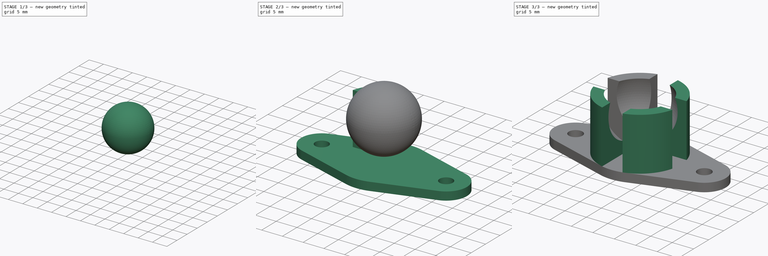
[diagram: build sequence overview — one tinted view per stage of 3, left to right]
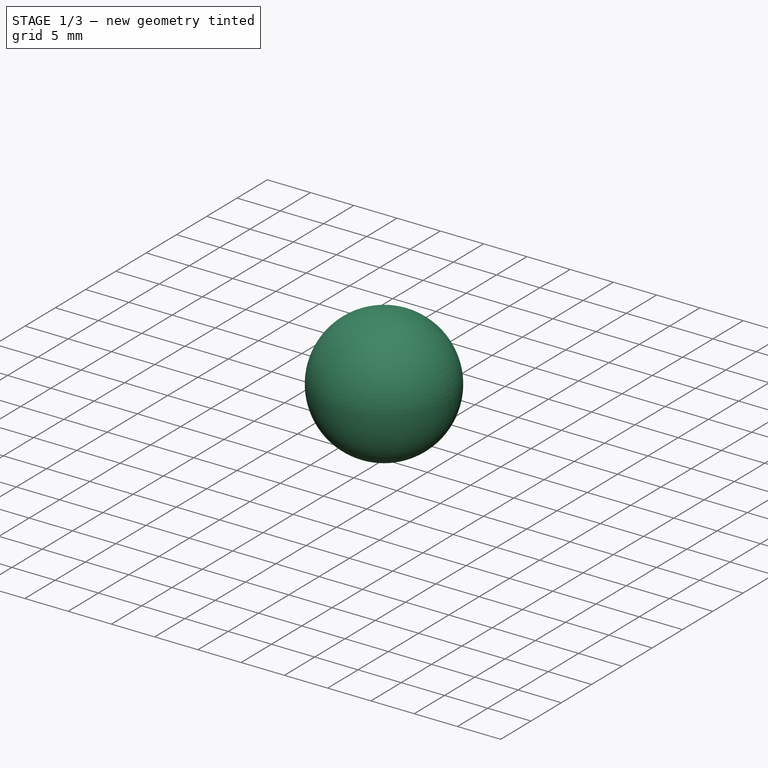
[diagram: stage 1 of 3 — iso view after this stage's code; geometry added in this stage tinted green]
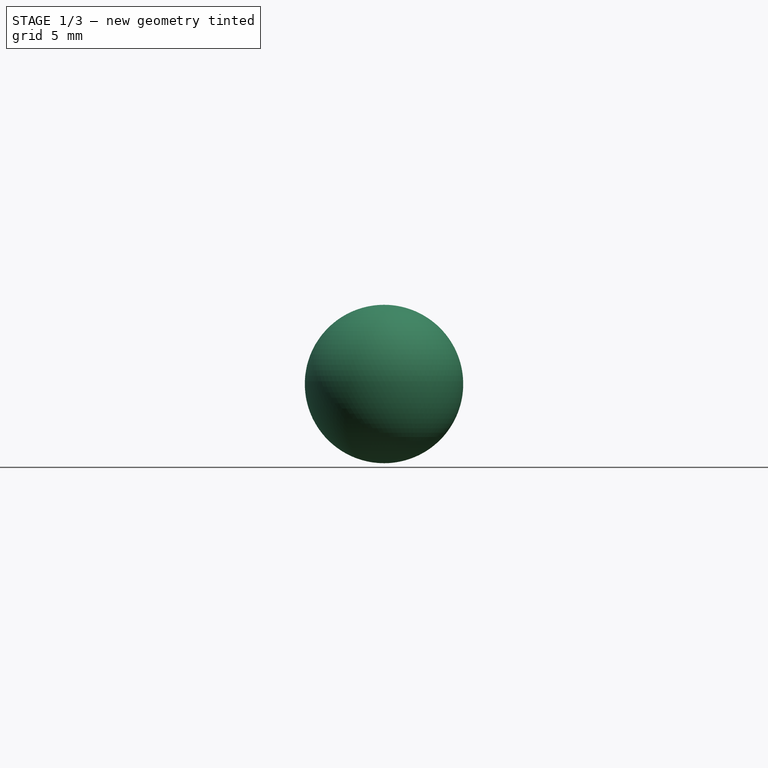
[diagram: stage 1 of 3 — front view after this stage's code; geometry added in this stage tinted green]
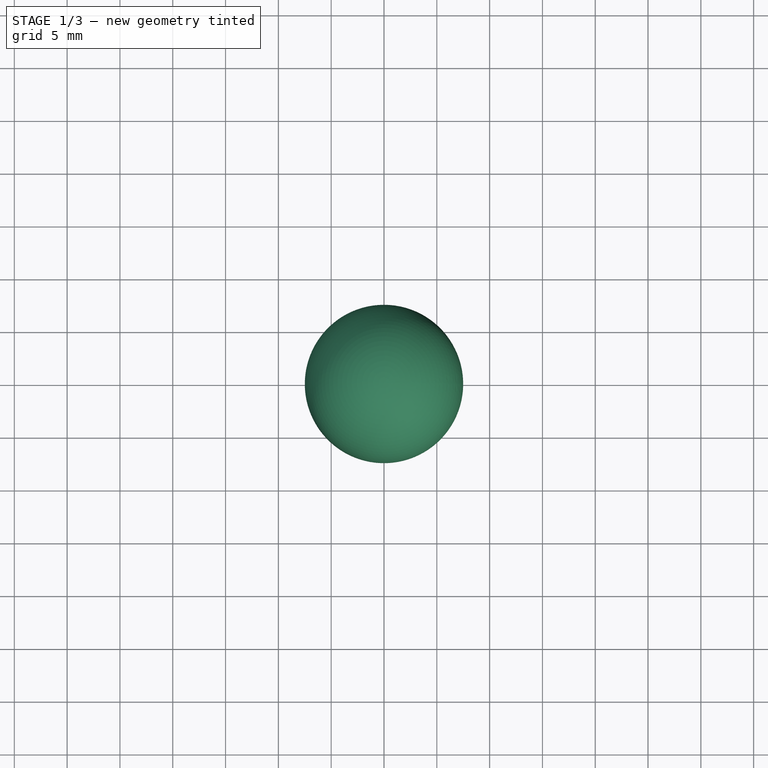
[diagram: stage 1 of 3 — top view after this stage's code; geometry added in this stage tinted green]
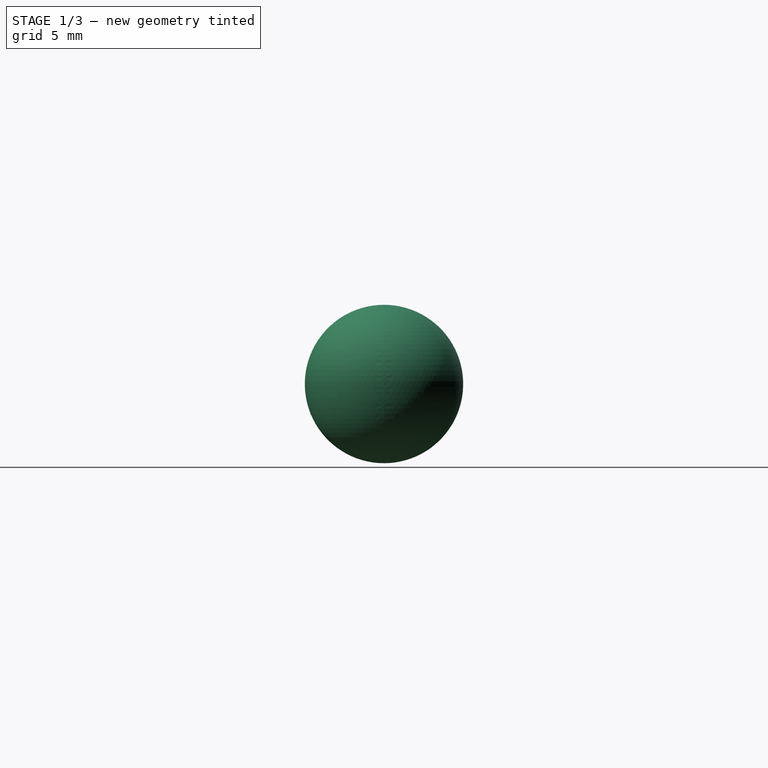
[diagram: stage 1 of 3 — right view after this stage's code; geometry added in this stage tinted green]
FCSTD DOCUMENT  (FreeCAD 0.14R3692 (Git))
Label: BallCaster
License: CC-BY 3.0
LicenseURL: http://creativecommons.org/licenses/by/3.0/
objects: Sketcher::SketchObject×3, PartDesign::Pad×2, PartDesign::Pocket×1, PartDesign::PolarPattern×1, Part::Sphere×1, Part::Offset×1, Part::Cut×1, Part::Feature×1
note: 14 computed .brp shape members not serialized (recipe doc carries the construction recipe); baked Part::Feature solids carry a one-line shape summary decoded from their .brp

FEATURE [Part::Sphere] Sphere  label="Ball"
  Angle1 = -90
  Angle2 = 90
  Angle3 = 360
  Placement = pos=(0,0,11.5) rot=(0,0,1;0rad)
  Radius = 7.25
FEATURE [Part::Offset] Offset  label="AirGapOffset"
  Fill = false
  Intersection = false
  Join = 0
  Mode = 0
  SelfIntersection = false
  Source = -> Sphere
  Value = 0.25
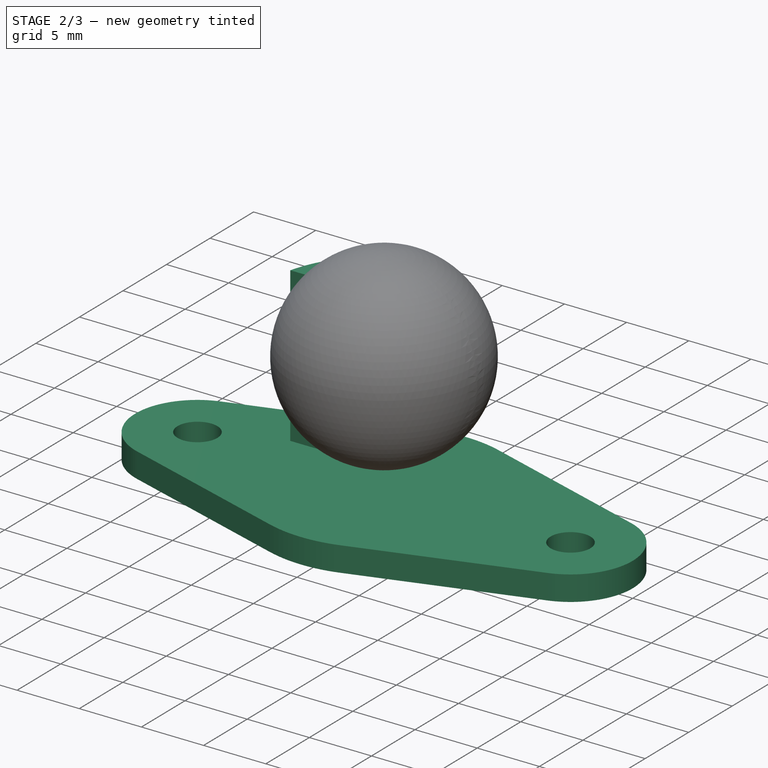
[diagram: stage 2 of 3 — iso view after this stage's code; geometry added in this stage tinted green]
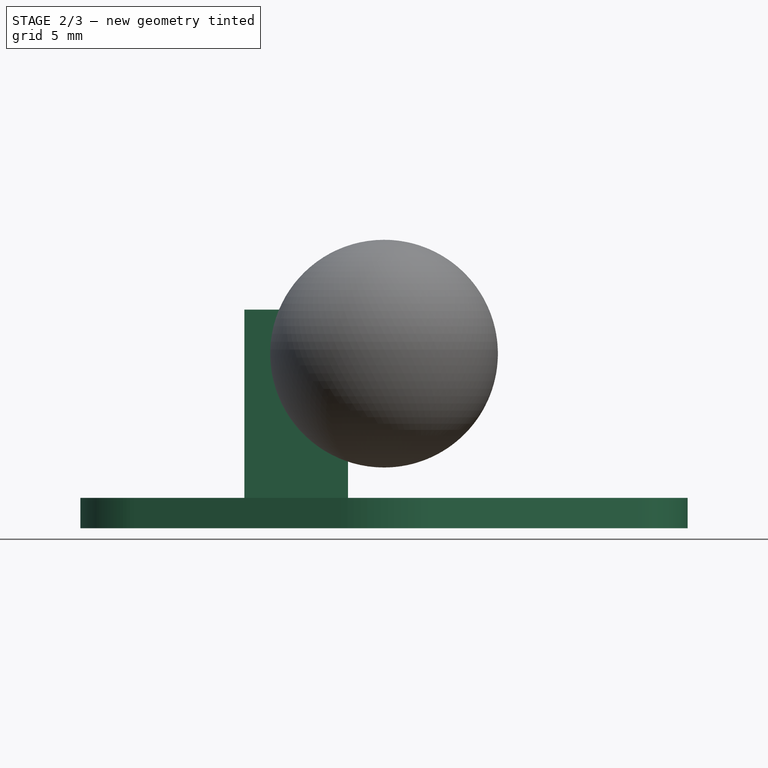
[diagram: stage 2 of 3 — front view after this stage's code; geometry added in this stage tinted green]
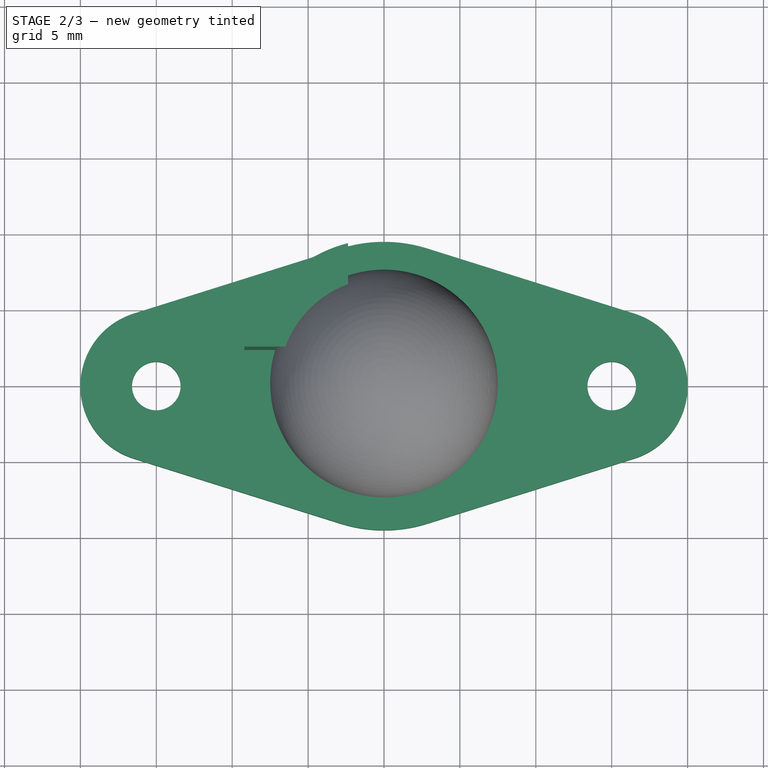
[diagram: stage 2 of 3 — top view after this stage's code; geometry added in this stage tinted green]
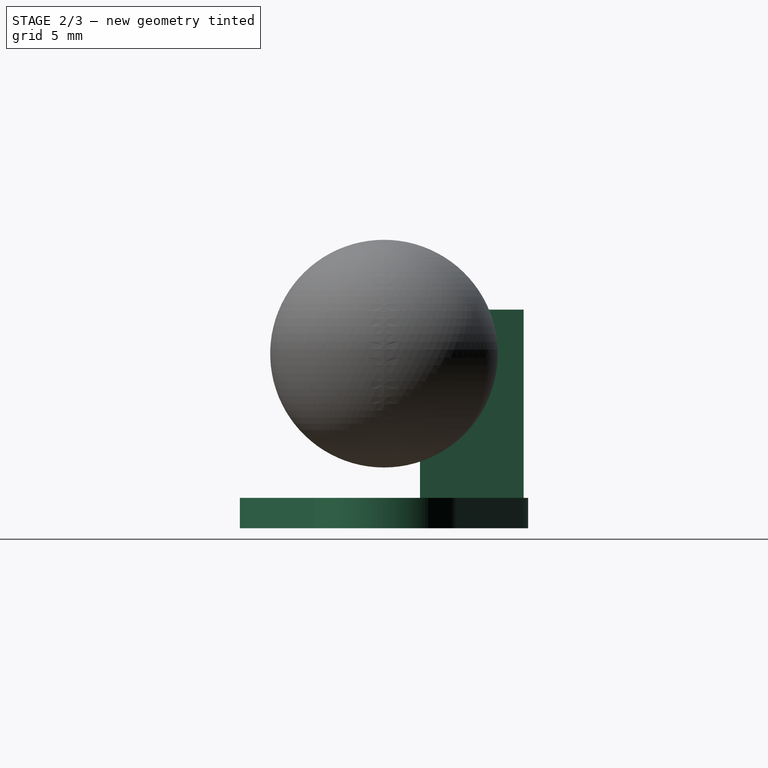
[diagram: stage 2 of 3 — right view after this stage's code; geometry added in this stage tinted green]
FEATURE [Sketcher::SketchObject] Sketch  label="BaseSketch"
  sketch-geometry (8):
    g0: LineSegment StartX=-16.5 StartY=4.7697 StartZ=0 EndX=-2.85 EndY=9.06242 EndZ=0
    g1: LineSegment StartX=2.85 StartY=9.06242 StartZ=0 EndX=16.5 EndY=4.76969 EndZ=0
    g2: LineSegment StartX=-16.5 StartY=-4.7697 StartZ=0 EndX=-2.85 EndY=-9.06242 EndZ=0
    g3: LineSegment StartX=2.85 StartY=-9.06242 StartZ=0 EndX=16.5 EndY=-4.76969 EndZ=0
    g4: ArcOfCircle CenterX=-15 CenterY=0 CenterZ=0 NormalX=0 NormalY=0 NormalZ=1 Radius=5 StartAngle=1.87549 EndAngle=4.4077
    g5: ArcOfCircle CenterX=0 CenterY=0 CenterZ=0 NormalX=0 NormalY=0 NormalZ=1 Radius=9.5 StartAngle=1.2661 EndAngle=1.87549
    g6: ArcOfCircle CenterX=15 CenterY=0 CenterZ=0 NormalX=0 NormalY=0 NormalZ=1 Radius=5 StartAngle=5.01708 EndAngle=7.54929
    g7: ArcOfCircle CenterX=0 CenterY=0 CenterZ=0 NormalX=0 NormalY=0 NormalZ=1 Radius=9.5 StartAngle=4.4077 EndAngle=5.01708
  constraints (26):
    c: Coincident(g4,g2)
    c: Coincident(g4,g0)
    c: Coincident(g5,g-1)
    c: Coincident(g5,g1)
    c: Coincident(g5,g0)
    c: Coincident(g6,g3)
    c: Coincident(g6,g1)
    c: Coincident(g2,g7)
    c: Coincident(g3,g7)
    c: PointOnObject(g4,g-1)
    c: Radius(g5) = 9.5
    c: Equal(g5,g7)
    c: Coincident(g7,g-1)
    c: Radius(g4) = 5
    c: Equal(g4,g6)
    c: PointOnObject(g6,g-1)
    c: Tangent(g0,g4)
    c: Tangent(g2,g4)
    c: Tangent(g2,g7)
    c: Tangent(g7,g3)
    c: Tangent(g3,g6)
    c: Tangent(g6,g1)
    c: Tangent(g1,g5)
    c: Tangent(g5,g0)
    c: DistanceX(g6,g4) = -30
    c: Symmetric(g4,g6,g-2)
FEATURE [PartDesign::Pad] Pad  label="Base"
  Length = 2
  Length2 = 100
  Sketch = -> Sketch
  Type = 0
FEATURE [Sketcher::SketchObject] Sketch001  label="ScrewsSketch"
  ExternalGeometry = -> [Pad]
  Placement = pos=(0,0,2) rot=(0,0,1;0rad)
  Support = -> Pad [Face10]
  sketch-geometry (2):
    g0: Circle CenterX=-15 CenterY=0 CenterZ=0 NormalX=0 NormalY=0 NormalZ=1 Radius=1.6
    g1: Circle CenterX=15 CenterY=0 CenterZ=0 NormalX=0 NormalY=0 NormalZ=1 Radius=1.6
  constraints (4):
    c: Coincident(g0,g-3)
    c: Radius(g0) = 1.6
    c: Symmetric(g0,g1,g-2)
    c: Equal(g1,g0)
FEATURE [PartDesign::Pocket] Pocket  label="Screws"
  Length = 5
  Sketch = -> Sketch001
  Type = 1
FEATURE [Sketcher::SketchObject] Sketch002  label="BodySketch"
  Placement = pos=(0,0,2) rot=(0,0,1;0rad)
  Support = -> Pocket [Face5]
  sketch-geometry (3):
    g0: ArcOfCircle CenterX=0 CenterY=0 CenterZ=0 NormalX=0 NormalY=0 NormalZ=1 Radius=9.5 StartAngle=1.82348 EndAngle=2.88891
    g1: LineSegment StartX=-2.375 StartY=9.19834 StartZ=0 EndX=-2.375 EndY=2.375 EndZ=0
    g2: LineSegment StartX=-2.375 StartY=2.375 StartZ=0 EndX=-9.19834 EndY=2.375 EndZ=0
  constraints (9):
    c: Radius(g0) = 9.5
    c: Coincident(g0,g-1)
    c: Coincident(g1,g2)
    c: Horizontal(g2)
    c: Vertical(g1)
    c: Coincident(g0,g1)
    c: Coincident(g0,g2)
    c: DistanceY(g-1,g1) = 2.375
    c: DistanceX(g-1,g1) = -2.375
FEATURE [PartDesign::Pad] Pad001  label="Body"
  Length = 12.4
  Length2 = 100
  Sketch = -> Sketch002
  Type = 0
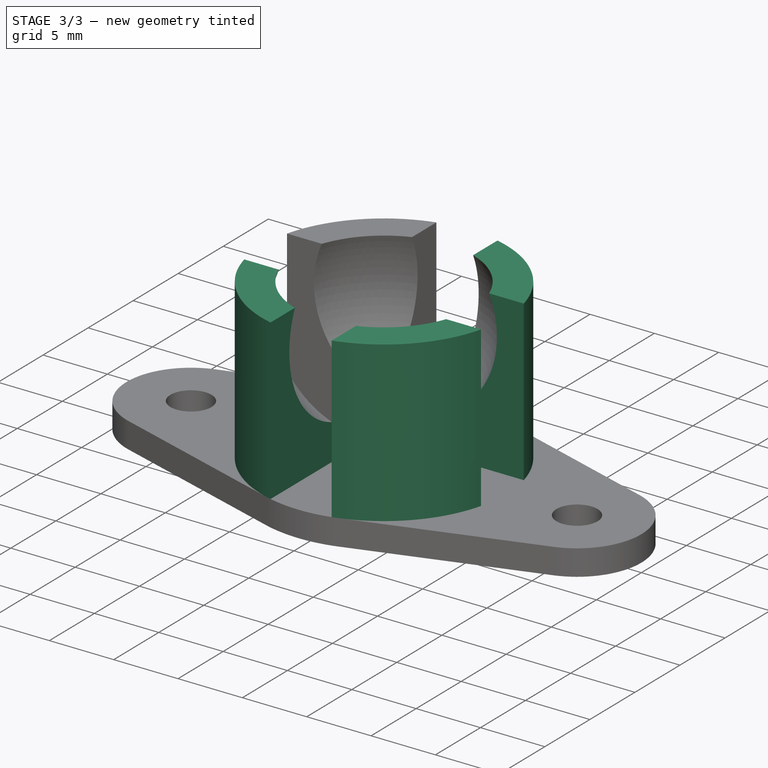
[diagram: stage 3 of 3 — iso view after this stage's code; geometry added in this stage tinted green]
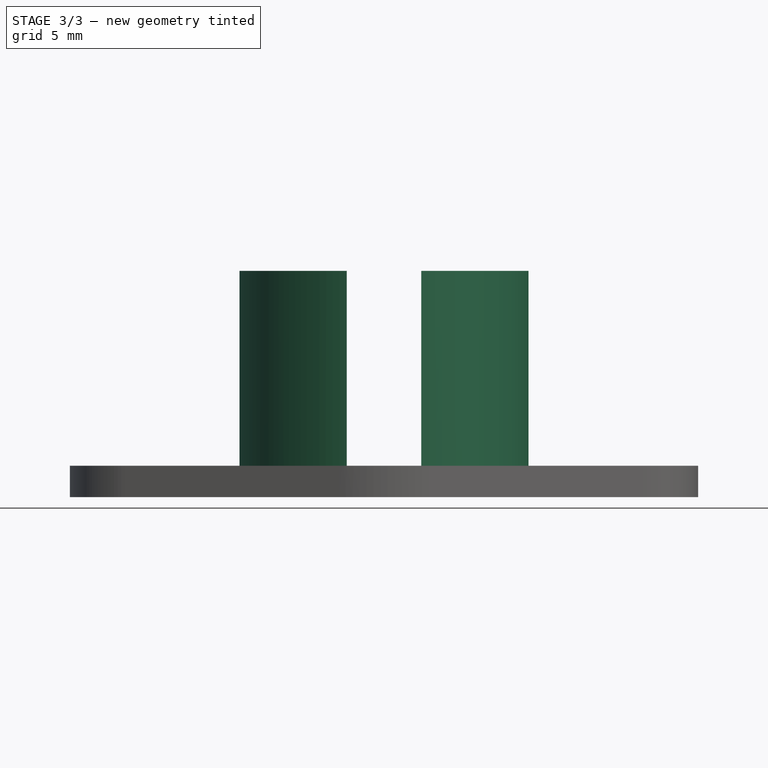
[diagram: stage 3 of 3 — front view after this stage's code; geometry added in this stage tinted green]
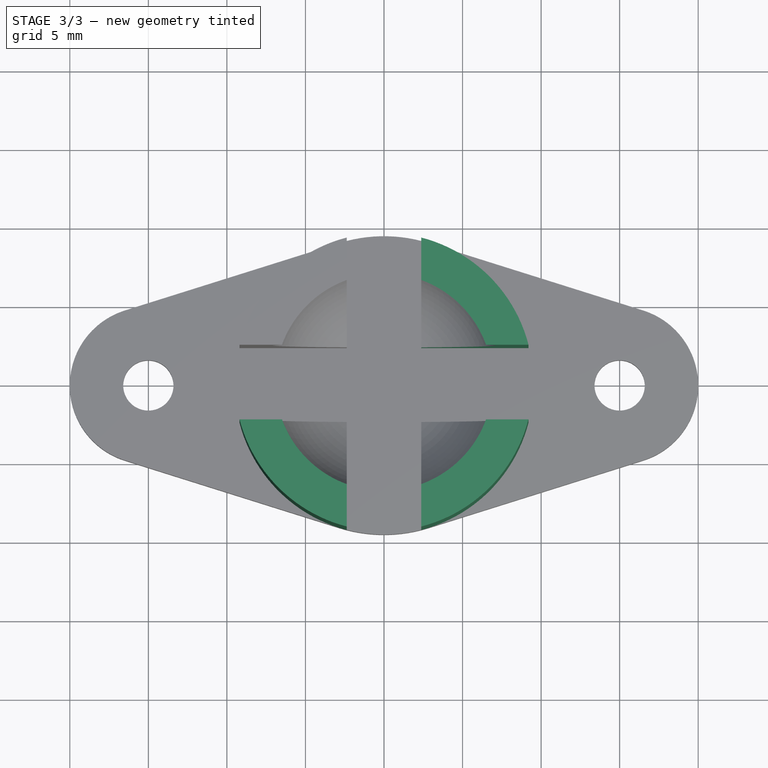
[diagram: stage 3 of 3 — top view after this stage's code; geometry added in this stage tinted green]
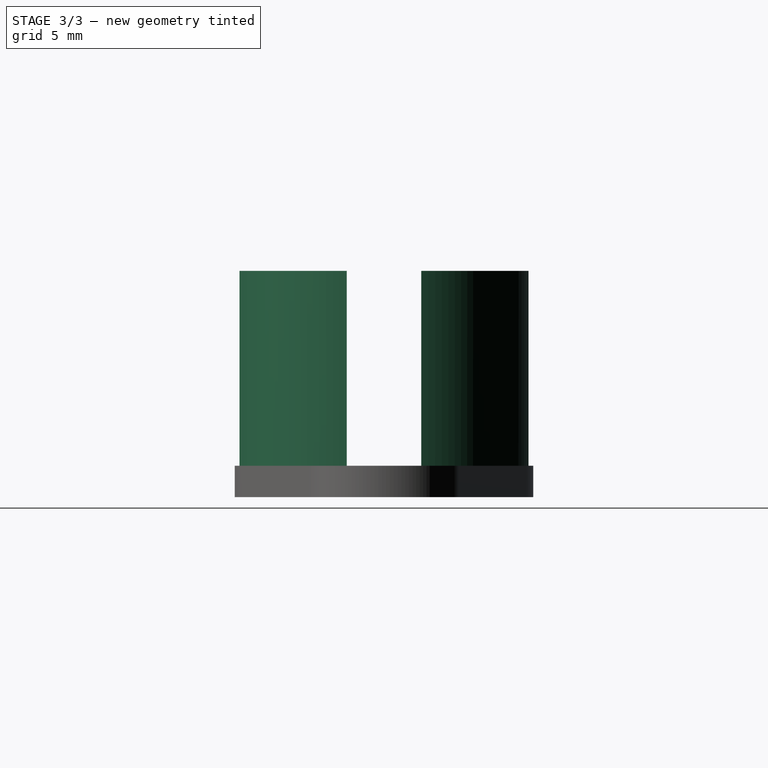
[diagram: stage 3 of 3 — right view after this stage's code; geometry added in this stage tinted green]
FEATURE [PartDesign::PolarPattern] PolarPattern
  Angle = 360
  Axis = -> Sketch002 [N_Axis]
  Occurrences = 4
  Originals = -> [Pad001]
FEATURE [Part::Cut] Cut  label="Caster"
  Base = -> PolarPattern
  Tool = -> Offset
FEATURE [Part::Feature] Cut001  label="BallCaster_14.5mm"
  shape: bbox 40 x 19 x 14.4 mm, 28 faces (baked)
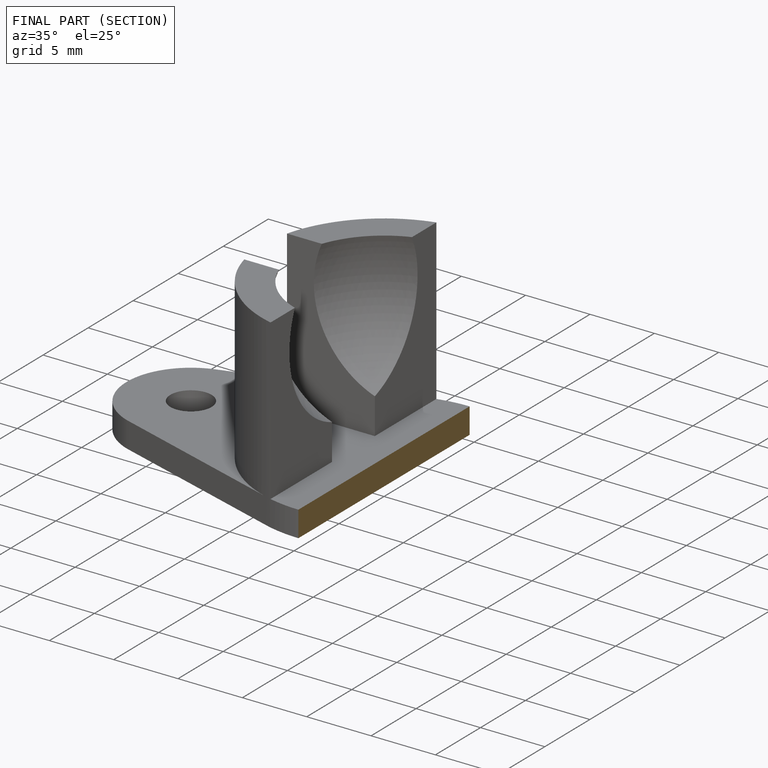
[diagram: finished part — half-section view (interior)]
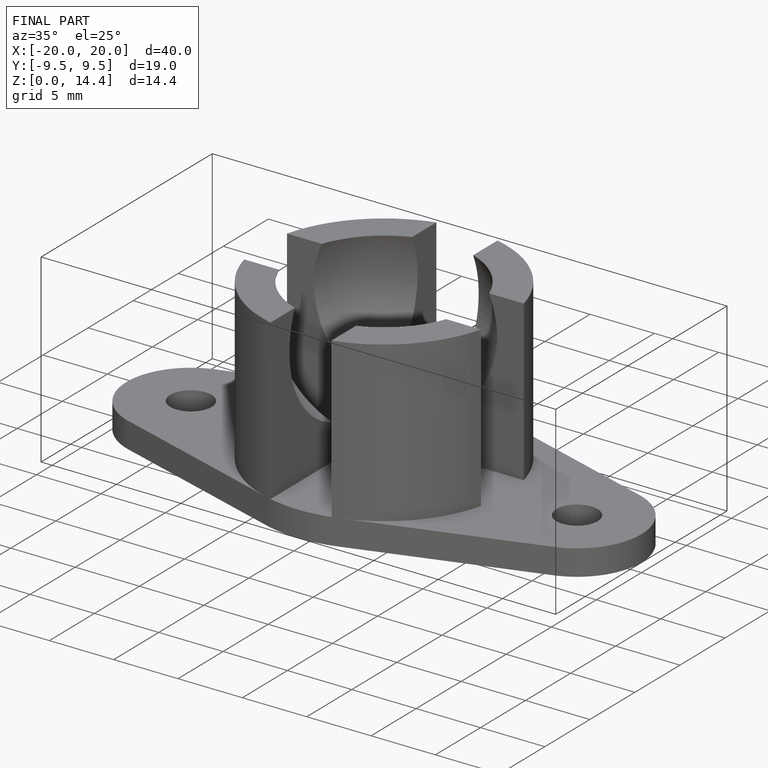
[diagram: finished part — iso view with bounding-box wireframe]
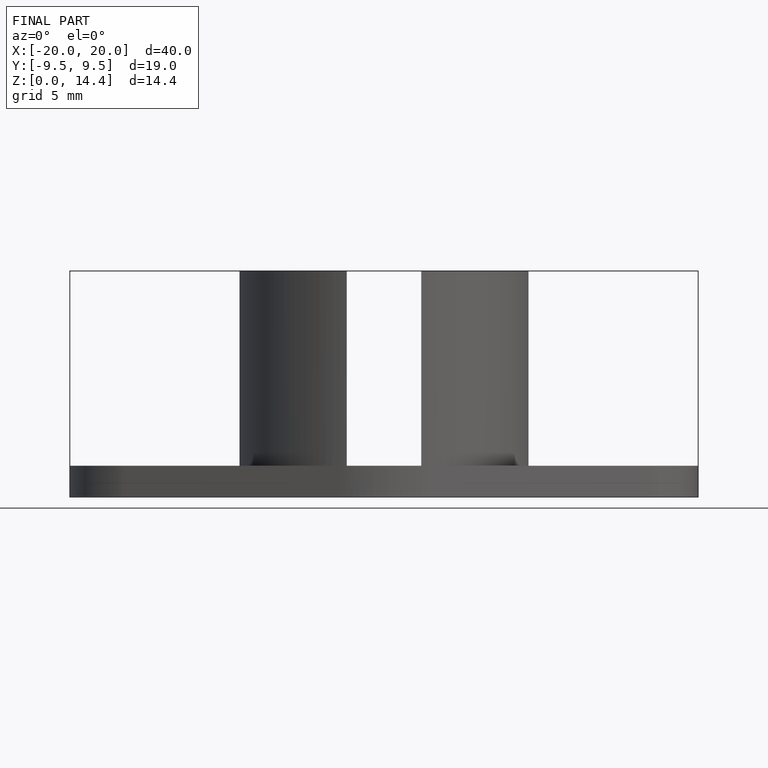
[diagram: finished part — front view with bounding-box wireframe]
